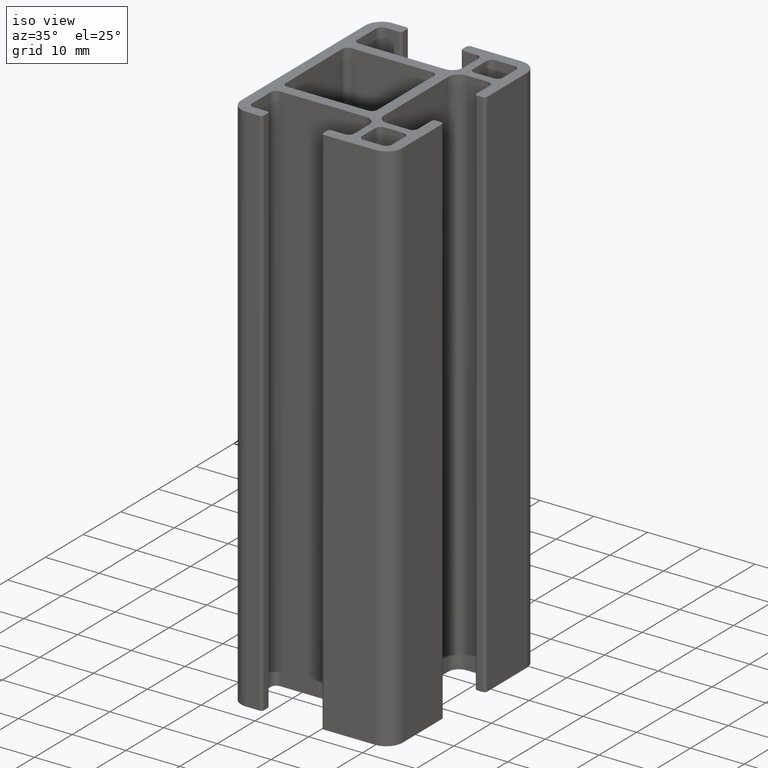
[diagram: clean part render]
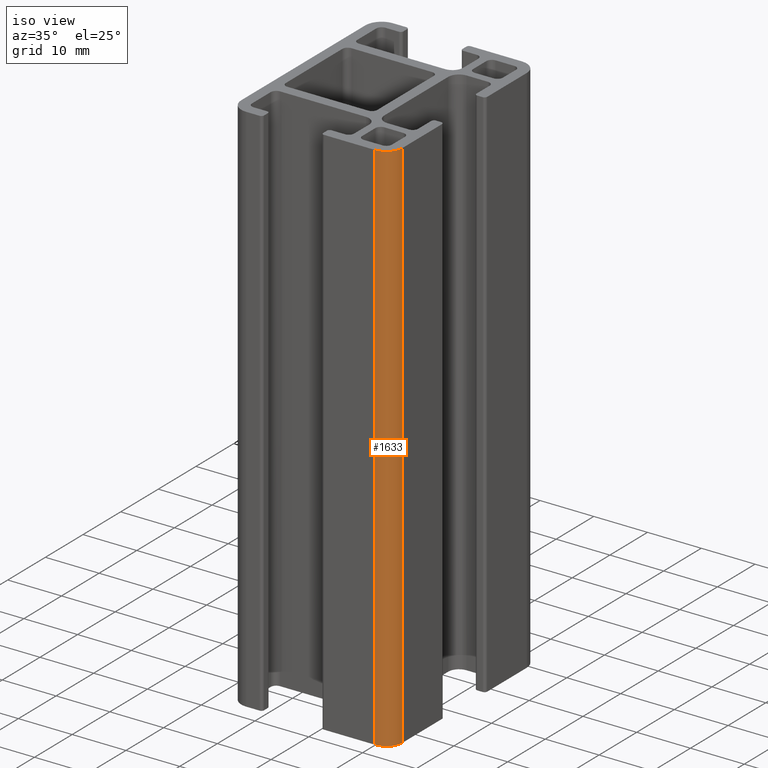
[diagram: same view with one face highlighted and labeled with its STEP entity id]
A machine part, iso view. The second image highlights one B-rep face of the part: STEP entity #1633.
In plain terms, the highlighted cylindrical surface (edge-blend (fillet) strip) has radius 3 mm, axis along (0, 0, 1).
Its self-contained STEP definition (entity closure, byte-faithful):
#93=CIRCLE('',#1784,2.99999999999999);
#100=CIRCLE('',#1797,2.99999999999999);
#140=CYLINDRICAL_SURFACE('',#1796,2.99999999999999);
#221=FACE_OUTER_BOUND('',#306,.T.);
#306=EDGE_LOOP('',(#1427,#1428,#1429,#1430));
#450=LINE('',#2713,#610);
#462=LINE('',#2737,#622);
#610=VECTOR('',#2224,100.);
#622=VECTOR('',#2244,100.);
#775=VERTEX_POINT('',#2710);
#776=VERTEX_POINT('',#2712);
#783=VERTEX_POINT('',#2734);
#784=VERTEX_POINT('',#2736);
#1002=EDGE_CURVE('',#775,#776,#450,.T.);
#1014=EDGE_CURVE('',#784,#783,#462,.T.);
#1016=EDGE_CURVE('',#783,#776,#93,.T.);
#1030=EDGE_CURVE('',#784,#775,#100,.T.);
#1427=ORIENTED_EDGE('',*,*,#1016,.T.);
#1428=ORIENTED_EDGE('',*,*,#1002,.F.);
#1429=ORIENTED_EDGE('',*,*,#1030,.F.);
#1430=ORIENTED_EDGE('',*,*,#1014,.T.);
#1633=ADVANCED_FACE('',(#221),#140,.T.);
#1784=AXIS2_PLACEMENT_3D('',#2740,#2248,#2249);
#1796=AXIS2_PLACEMENT_3D('',#2765,#2279,#2280);
#1797=AXIS2_PLACEMENT_3D('',#2766,#2281,#2282);
#2224=DIRECTION('',(0.,0.,1.));
#2244=DIRECTION('',(0.,0.,1.));
#2248=DIRECTION('center_axis',(0.,0.,-1.));
#2249=DIRECTION('ref_axis',(0.,1.,0.));
#2279=DIRECTION('center_axis',(0.,0.,1.));
#2280=DIRECTION('ref_axis',(0.,1.,0.));
#2281=DIRECTION('center_axis',(0.,0.,-1.));
#2282=DIRECTION('ref_axis',(0.,1.,0.));
#2710=CARTESIAN_POINT('',(12.,-19.5,0.));
#2712=CARTESIAN_POINT('',(12.,-19.5,100.));
#2713=CARTESIAN_POINT('',(12.,-19.5,0.));
#2734=CARTESIAN_POINT('',(15.,-16.5,100.));
#2736=CARTESIAN_POINT('',(15.,-16.5,0.));
#2737=CARTESIAN_POINT('',(15.,-16.5,0.));
#2740=CARTESIAN_POINT('Origin',(12.,-16.5,100.));
#2765=CARTESIAN_POINT('Origin',(12.,-16.5,0.));
#2766=CARTESIAN_POINT('Origin',(12.,-16.5,0.));